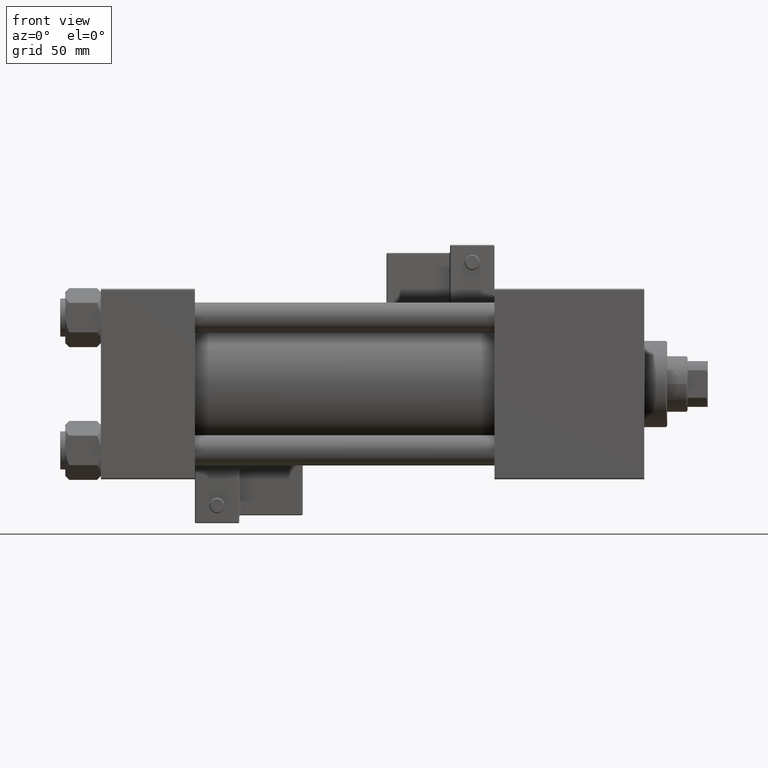
[diagram: clean part render]
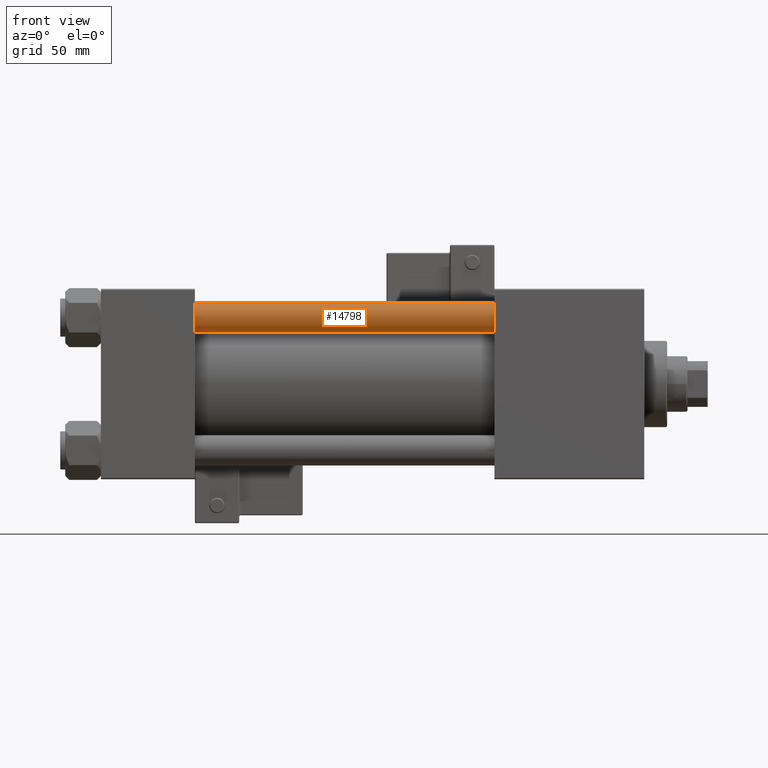
[diagram: same view with one face highlighted and labeled with its STEP entity id]
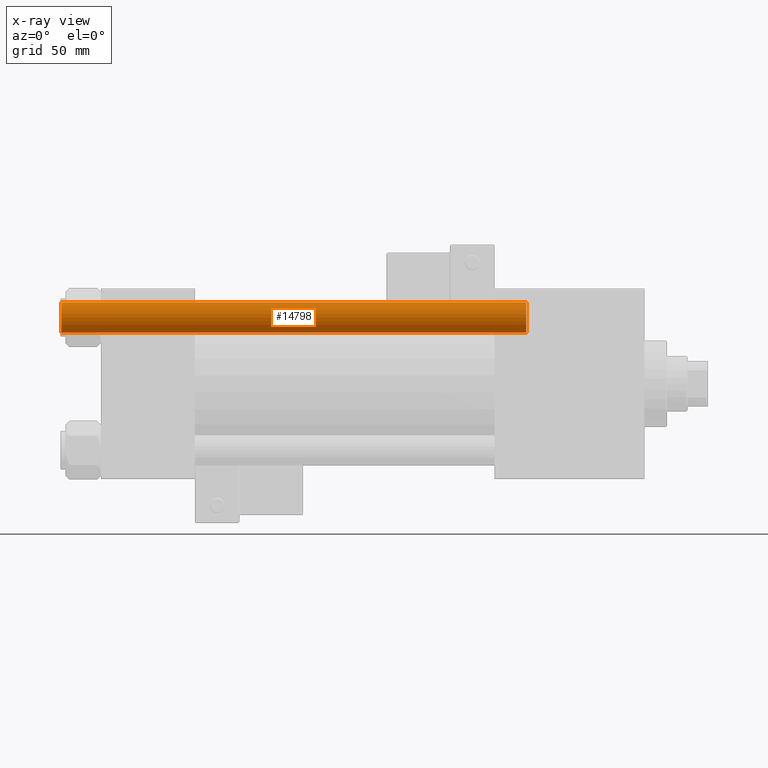
[diagram: x-ray of the same camera — body ghosted, the highlighted face saturated]
A machine part, front view. The second image highlights one B-rep face of the part: STEP entity #14798.
The next image is the same camera in x-ray: the body ghosted, the highlighted face saturated — about 0% of this face is hidden behind the body in this view.
In plain terms, the highlighted cylindrical surface (edge-blend (fillet) strip) has radius 6 mm, axis along (1, 0, -0).
Its self-contained STEP definition (entity closure, byte-faithful):
#550 = LINE ( 'NONE', #16507, #38821 ) ;
#2522 = CARTESIAN_POINT ( 'NONE',  ( 0.000000000000000000, 0.000000000000000000, 184.0000000000000000 ) ) ;
#3388 = DIRECTION ( 'NONE',  ( 0.000000000000000000, 0.000000000000000000, -1.000000000000000000 ) ) ;
#4434 = AXIS2_PLACEMENT_3D ( 'NONE', #6598, #3388, #47231 ) ;
#4580 = ORIENTED_EDGE ( 'NONE', *, *, #6519, .T. ) ;
#4600 = DIRECTION ( 'NONE',  ( -0.000000000000000000, -0.000000000000000000, 1.000000000000000000 ) ) ;
#5768 = ORIENTED_EDGE ( 'NONE', *, *, #51338, .T. ) ;
#6516 = FACE_OUTER_BOUND ( 'NONE', #7932, .T. ) ;
#6519 = EDGE_CURVE ( 'NONE', #15224, #45661, #40319, .T. ) ;
#6598 = CARTESIAN_POINT ( 'NONE',  ( 0.000000000000000000, 0.000000000000000000, 183.5000000000000000 ) ) ;
#7932 = EDGE_LOOP ( 'NONE', ( #14442, #4580, #5768, #47976 ) ) ;
#11274 = CYLINDRICAL_SURFACE ( 'NONE', #45945, 6.000000000000000888 ) ;
#11528 = DIRECTION ( 'NONE',  ( -1.000000000000000000, 0.000000000000000000, 0.000000000000000000 ) ) ;
#14442 = ORIENTED_EDGE ( 'NONE', *, *, #25366, .T. ) ;
#14798 = ADVANCED_FACE ( 'NONE', ( #6516 ), #11274, .T. ) ;
#15224 = VERTEX_POINT ( 'NONE', #31410 ) ;
#16052 = DIRECTION ( 'NONE',  ( 1.000000000000000000, 0.000000000000000000, 0.000000000000000000 ) ) ;
#16507 = CARTESIAN_POINT ( 'NONE',  ( -6.000000000000000888, 0.000000000000000000, 184.0000000000000000 ) ) ;
#25366 = EDGE_CURVE ( 'NONE', #28479, #15224, #27325, .T. ) ;
#27325 = CIRCLE ( 'NONE', #4434, 6.000000000000000888 ) ;
#27978 = CARTESIAN_POINT ( 'NONE',  ( -6.000000000000000888, 0.000000000000000000, 183.5000000000000000 ) ) ;
#28479 = VERTEX_POINT ( 'NONE', #27978 ) ;
#28976 = DIRECTION ( 'NONE',  ( -0.000000000000000000, -0.000000000000000000, -1.000000000000000000 ) ) ;
#31186 = DIRECTION ( 'NONE',  ( -0.000000000000000000, -0.000000000000000000, -1.000000000000000000 ) ) ;
#31410 = CARTESIAN_POINT ( 'NONE',  ( 6.000000000000000888, 7.347880794884120722E-16, 183.5000000000000000 ) ) ;
#32084 = CARTESIAN_POINT ( 'NONE',  ( 6.000000000000000888, 7.347880794884120722E-16, 184.0000000000000000 ) ) ;
#32492 = CARTESIAN_POINT ( 'NONE',  ( 0.000000000000000000, 0.000000000000000000, 0.5000000000000004441 ) ) ;
#35263 = AXIS2_PLACEMENT_3D ( 'NONE', #32492, #4600, #16052 ) ;
#35534 = DIRECTION ( 'NONE',  ( -0.000000000000000000, -0.000000000000000000, -1.000000000000000000 ) ) ;
#36276 = VERTEX_POINT ( 'NONE', #48974 ) ;
#38821 = VECTOR ( 'NONE', #28976, 1000.000000000000000 ) ;
#39531 = CIRCLE ( 'NONE', #35263, 6.000000000000000888 ) ;
#40319 = LINE ( 'NONE', #32084, #46457 ) ;
#41172 = EDGE_CURVE ( 'NONE', #28479, #36276, #550, .T. ) ;
#41299 = CARTESIAN_POINT ( 'NONE',  ( 6.000000000000000888, 7.347880794884120722E-16, 0.5000000000000004441 ) ) ;
#45661 = VERTEX_POINT ( 'NONE', #41299 ) ;
#45945 = AXIS2_PLACEMENT_3D ( 'NONE', #2522, #31186, #11528 ) ;
#46457 = VECTOR ( 'NONE', #35534, 1000.000000000000000 ) ;
#47231 = DIRECTION ( 'NONE',  ( 1.000000000000000000, 0.000000000000000000, 0.000000000000000000 ) ) ;
#47976 = ORIENTED_EDGE ( 'NONE', *, *, #41172, .F. ) ;
#48974 = CARTESIAN_POINT ( 'NONE',  ( -6.000000000000000888, 0.000000000000000000, 0.5000000000000004441 ) ) ;
#51338 = EDGE_CURVE ( 'NONE', #45661, #36276, #39531, .T. ) ;